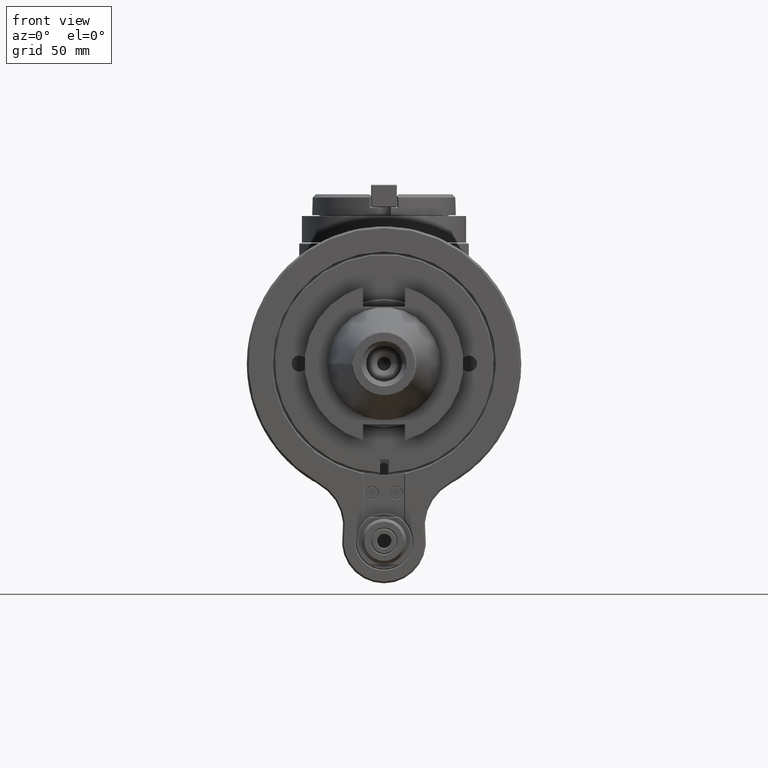
[diagram: clean part render]
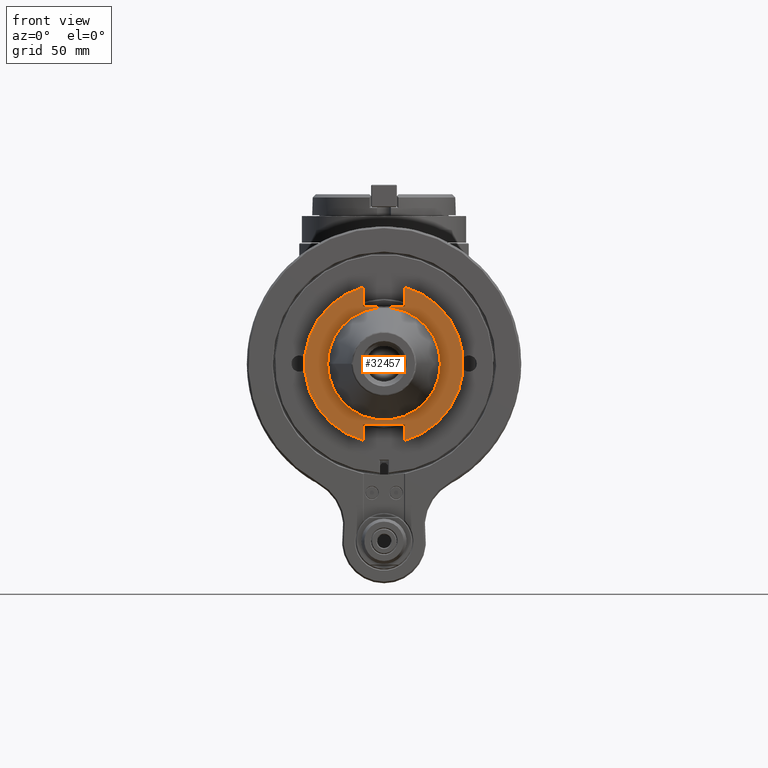
[diagram: same view with one face highlighted and labeled with its STEP entity id]
A machine part, front view. The second image highlights one B-rep face of the part: STEP entity #32457.
In plain terms, the highlighted planar face has unit normal (0, -1, 0).
Its self-contained STEP definition (entity closure, byte-faithful):
#3700=LINE('',#66040,#6506);
#3703=LINE('',#66045,#6509);
#3704=LINE('',#66049,#6510);
#3705=LINE('',#66051,#6511);
#3706=LINE('',#66053,#6512);
#3707=LINE('',#66056,#6513);
#6506=VECTOR('',#44127,25.9);
#6509=VECTOR('',#44132,12.17548419974);
#6510=VECTOR('',#44135,9.775484199743);
#6511=VECTOR('',#44136,25.9);
#6512=VECTOR('',#44137,9.775484199743);
#6513=VECTOR('',#44140,12.17548419974);
#7322=FACE_BOUND('',#11148,.T.);
#9045=FACE_OUTER_BOUND('',#11147,.T.);
#11147=EDGE_LOOP('',(#28992,#28993,#28994,#28995,#28996,#28997,#28998,#28999));
#11148=EDGE_LOOP('',(#29000));
#12489=CIRCLE('',#35499,49.21);
#12490=CIRCLE('',#35500,49.21);
#12491=CIRCLE('',#35501,34.925);
#15433=VERTEX_POINT('',#66038);
#15434=VERTEX_POINT('',#66039);
#15435=VERTEX_POINT('',#66044);
#15436=VERTEX_POINT('',#66046);
#15437=VERTEX_POINT('',#66048);
#15438=VERTEX_POINT('',#66050);
#15439=VERTEX_POINT('',#66052);
#15440=VERTEX_POINT('',#66054);
#15441=VERTEX_POINT('',#66057);
#19989=EDGE_CURVE('',#15433,#15434,#3700,.T.);
#19992=EDGE_CURVE('',#15433,#15435,#3703,.T.);
#19993=EDGE_CURVE('',#15435,#15436,#12489,.T.);
#19994=EDGE_CURVE('',#15436,#15437,#3704,.T.);
#19995=EDGE_CURVE('',#15437,#15438,#3705,.T.);
#19996=EDGE_CURVE('',#15439,#15438,#3706,.T.);
#19997=EDGE_CURVE('',#15439,#15440,#12490,.T.);
#19998=EDGE_CURVE('',#15440,#15434,#3707,.T.);
#19999=EDGE_CURVE('',#15441,#15441,#12491,.T.);
#28992=ORIENTED_EDGE('',*,*,#19989,.F.);
#28993=ORIENTED_EDGE('',*,*,#19992,.T.);
#28994=ORIENTED_EDGE('',*,*,#19993,.T.);
#28995=ORIENTED_EDGE('',*,*,#19994,.T.);
#28996=ORIENTED_EDGE('',*,*,#19995,.T.);
#28997=ORIENTED_EDGE('',*,*,#19996,.F.);
#28998=ORIENTED_EDGE('',*,*,#19997,.T.);
#28999=ORIENTED_EDGE('',*,*,#19998,.T.);
#29000=ORIENTED_EDGE('',*,*,#19999,.F.);
#30708=PLANE('',#35498);
#32457=ADVANCED_FACE('',(#9045,#7322),#30708,.T.);
#35498=AXIS2_PLACEMENT_3D('',#66043,#44130,#44131);
#35499=AXIS2_PLACEMENT_3D('',#66047,#44133,#44134);
#35500=AXIS2_PLACEMENT_3D('',#66055,#44138,#44139);
#35501=AXIS2_PLACEMENT_3D('',#66058,#44141,#44142);
#44127=DIRECTION('',(1.,0.,0.));
#44130=DIRECTION('center_axis',(0.,-1.,0.));
#44131=DIRECTION('ref_axis',(-1.,0.,0.));
#44132=DIRECTION('',(0.,0.,1.));
#44133=DIRECTION('center_axis',(0.,-1.,0.));
#44134=DIRECTION('ref_axis',(-0.263157894736813,0.,0.964752777885448));
#44135=DIRECTION('',(0.,0.,1.));
#44136=DIRECTION('',(1.,0.,0.));
#44137=DIRECTION('',(0.,0.,1.));
#44138=DIRECTION('center_axis',(0.,-1.,0.));
#44139=DIRECTION('ref_axis',(0.263157894736813,0.,-0.964752777885448));
#44140=DIRECTION('',(0.,0.,-1.));
#44141=DIRECTION('center_axis',(0.,-1.,0.));
#44142=DIRECTION('ref_axis',(1.,0.,0.));
#66038=CARTESIAN_POINT('',(-12.95,-76.8,35.3));
#66039=CARTESIAN_POINT('',(12.95,-76.8,35.3));
#66040=CARTESIAN_POINT('',(-12.95,-76.8,35.3));
#66043=CARTESIAN_POINT('Origin',(0.,-76.8,0.));
#66044=CARTESIAN_POINT('',(-12.95,-76.8,47.47548419974));
#66045=CARTESIAN_POINT('',(-12.95,-76.8,35.3));
#66046=CARTESIAN_POINT('',(-12.95,-76.8,-47.47548419974));
#66047=CARTESIAN_POINT('Origin',(0.,-76.8,0.));
#66048=CARTESIAN_POINT('',(-12.95,-76.8,-37.7));
#66049=CARTESIAN_POINT('',(-12.95,-76.8,-47.47548419974));
#66050=CARTESIAN_POINT('',(12.95,-76.8,-37.7));
#66051=CARTESIAN_POINT('',(-12.95,-76.8,-37.7));
#66052=CARTESIAN_POINT('',(12.95,-76.8,-47.47548419974));
#66053=CARTESIAN_POINT('',(12.95,-76.8,-47.47548419974));
#66054=CARTESIAN_POINT('',(12.95,-76.8,47.47548419974));
#66055=CARTESIAN_POINT('Origin',(0.,-76.8,0.));
#66056=CARTESIAN_POINT('',(12.95,-76.8,47.47548419974));
#66057=CARTESIAN_POINT('',(34.925,-76.8,0.));
#66058=CARTESIAN_POINT('Origin',(0.,-76.8,0.));